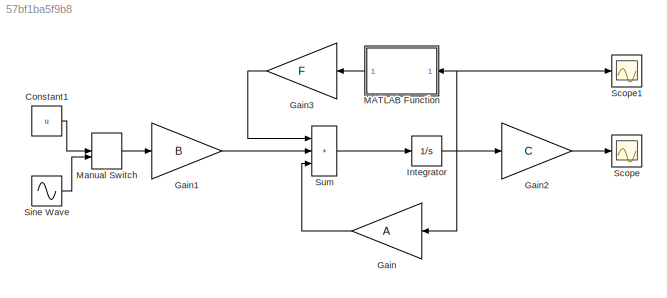
MODEL slx_57bf1ba5f9b8
KIND model
CONFIG AbsTol = auto
CONFIG EnableMultiTasking = off
CONFIG FixedStep = auto
CONFIG MaxStep = auto
CONFIG MinStep = auto
CONFIG RelTol = 1e-3
CONFIG SampleTimeConstraint = Unconstrained
CONFIG SolverName = VariableStepAuto
CONFIG StartTime = 0.0
CONFIG StopTime = 20
BLOCK [Constant] Constant1
  Value = u
BLOCK [Gain] Gain
  Gain = A
  Multiplication = Matrix(K*u) (u vector)
  NameLocation = top
BLOCK [Gain] Gain1
  Gain = B
  Multiplication = Matrix(K*u) (u vector)
BLOCK [Gain] Gain2
  Gain = C
  Multiplication = Matrix(K*u) (u vector)
BLOCK [Gain] Gain3
  Gain = F
  Multiplication = Matrix(K*u) (u vector)
  NameLocation = top
BLOCK [Integrator] Integrator
  InitialCondition = x0
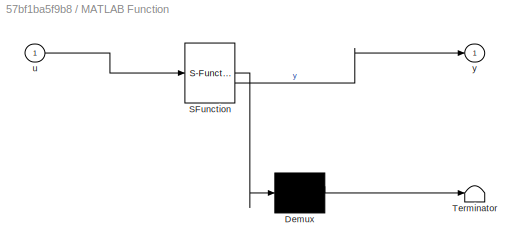
BLOCK [SubSystem] MATLAB Function
  ErrorFcn = Stateflow.Translate.translate
  LibrarySourceBlock = simulink/User-Defined\nFunctions/MATLAB Function
  NameLocation = top
  PermitHierarchicalResolution = ExplicitOnly
  SFBlockType = MATLAB Function
  TreatAsAtomicUnit = on
BLOCK [Demux] MATLAB Function/ Demux 
  Outputs = 1
BLOCK [S-Function] MATLAB Function/ SFunction 
  EnableBusSupport = on
  FunctionName = sf_sfun
  PortCounts = [1 2]
  SFcnIsStateOwnerBlock = off
  SFunctionDeploymentMode = off
  Tag = Stateflow S-Function 2
BLOCK [Terminator] MATLAB Function/ Terminator 
BLOCK [Inport] MATLAB Function/u
BLOCK [Outport] MATLAB Function/y
BLOCK [ManualSwitch] Manual Switch
  CurrentSetting = 0
BLOCK [Scope] Scope
  Floating = off
  NumInputPorts = 1
  ScopeSpecificationString = Simulink.scopes.TimeScopeBlockCfg('CurrentConfiguration', extmgr.ConfigurationSet(extmgr.Configuration('Core','General UI',true),extmgr.Configuration('Core','Source UI',true),extmgr.Configuration('Sources','WiredSimulink',true),extmgr.Configuration('Visuals','Time Domain',true,'SerializedDisplays',{struct('MinYLimReal','-0.01595','MaxYLimReal','0.02417','YLabelReal','','MinYLimMag','0.00000','MaxY...<+1358ch>
BLOCK [Scope] Scope1
  Floating = off
  NumInputPorts = 1
  ScopeSpecificationString = Simulink.scopes.TimeScopeBlockCfg('CurrentConfiguration', extmgr.ConfigurationSet(extmgr.Configuration('Core','General UI',true),extmgr.Configuration('Core','Source UI',true),extmgr.Configuration('Sources','WiredSimulink',true,'DataLoggingVariableName','ScopeData1'),extmgr.Configuration('Visuals','Time Domain',true,'SerializedDisplays',{struct('MinYLimReal','-0.29781','MaxYLimReal','0.39009','YLab...<+1419ch>
BLOCK [Sin] Sine Wave
  Amplitude = u
  SampleTime = 0
BLOCK [Sum] Sum
  IconShape = rectangular
  Inputs = +++
LINE Constant1:1 -> Manual Switch:1
LINE Gain1:1 -> Sum:2
LINE Gain2:1 -> Scope:1
LINE Gain3:1 -> Sum:1
LINE Gain:1 -> Sum:3
NET Integrator:1 -> Gain2:1, Gain:1, MATLAB Function:1, Scope1:1
LINE MATLAB Function:1 -> Gain3:1
LINE Manual Switch:1 -> Gain1:1
LINE Sine Wave:1 -> Manual Switch:2
LINE Sum:1 -> Integrator:1
note: NET lines group one-source signal fan-out (src -> all destinations, sorted); 1:1 wires keep LINE
CHART MATLAB Function states=1 transitions=1
  STATE_LABEL 'eML_blk_kernel()'
  STATE_LABEL 'SCRIPT:\nfunction y = fcn(u)\nx1 = u(1);\ny = 17.76*x1 +-103.79*power(x1, 2) + 229.62*power(x1, 3) - 226.31*power(x1, 4) + 83.72*power(x1, 5);\n'
CHART  states=0 transitions=0
